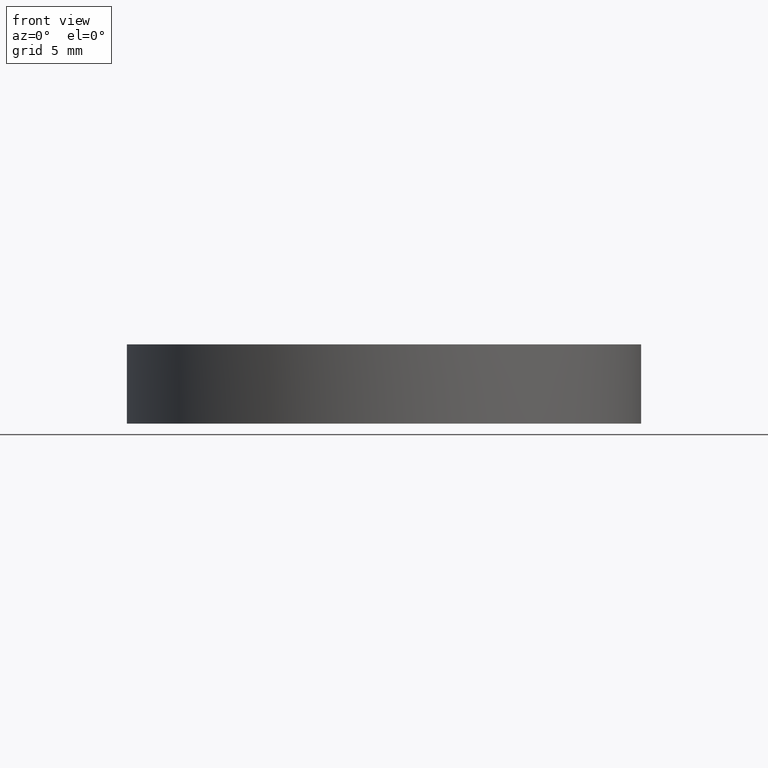
[diagram: clean part render]
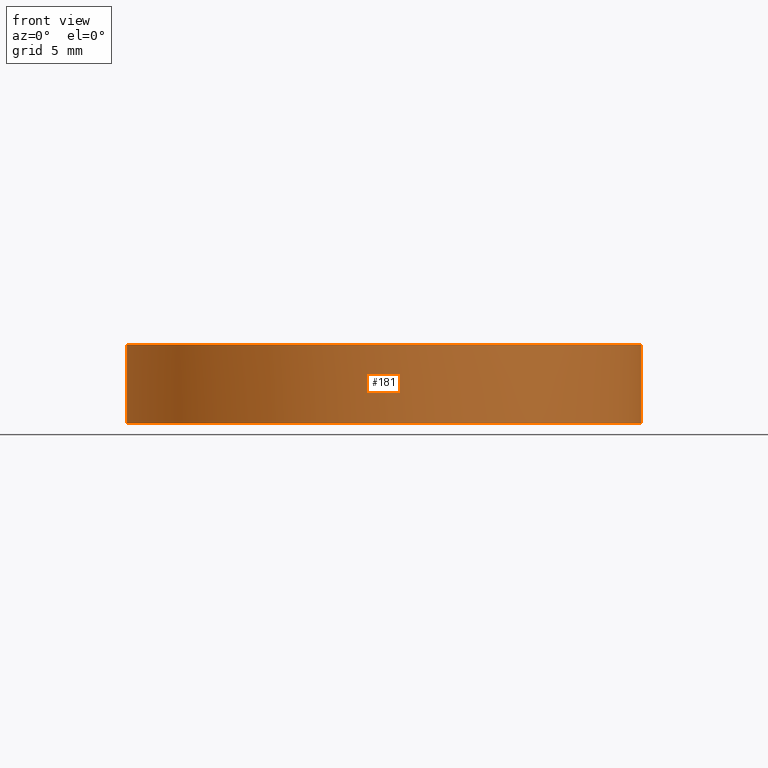
[diagram: same view with one face highlighted and labeled with its STEP entity id]
A machine part, front view. The second image highlights one B-rep face of the part: STEP entity #181.
In plain terms, the highlighted cylindrical surface (partial cylindrical patch) has radius 19.05 mm, axis along (-0, -0, 1).
Its self-contained STEP definition (entity closure, byte-faithful):
#1 = CIRCLE ( 'NONE', #19, 19.05000000000000100 ) ;
#5 = CARTESIAN_POINT ( 'NONE',  ( -4.731295993454753300E-015, -8.881784197001250400E-016, 4.099999999999999600 ) ) ;
#14 = LINE ( 'NONE', #165, #104 ) ;
#19 = AXIS2_PLACEMENT_3D ( 'NONE', #5, #186, #156 ) ;
#23 = CARTESIAN_POINT ( 'NONE',  ( 2.176337884454689400E-014, -19.04999999999996900, -1.764787732599487400 ) ) ;
#24 = CYLINDRICAL_SURFACE ( 'NONE', #194, 19.05000000000000100 ) ;
#27 = CARTESIAN_POINT ( 'NONE',  ( -4.662936703425659800E-015, -8.881784197001250400E-016, -1.764787732599490300 ) ) ;
#44 = FACE_OUTER_BOUND ( 'NONE', #132, .T. ) ;
#49 = DIRECTION ( 'NONE',  ( 1.000000000000000000, 0.0000000000000000000, 1.138269997360109700E-017 ) ) ;
#50 = VERTEX_POINT ( 'NONE', #23 ) ;
#62 = EDGE_CURVE ( 'NONE', #195, #77, #90, .T. ) ;
#73 = EDGE_CURVE ( 'NONE', #197, #233, #14, .T. ) ;
#75 = DIRECTION ( 'NONE',  ( -1.165588477296749900E-017, -5.434385993627839900E-034, 1.000000000000000000 ) ) ;
#77 = VERTEX_POINT ( 'NONE', #112 ) ;
#78 = AXIS2_PLACEMENT_3D ( 'NONE', #138, #80, #49 ) ;
#80 = DIRECTION ( 'NONE',  ( -1.165588477296749900E-017, -5.434385993627839900E-034, 1.000000000000000000 ) ) ;
#86 = CIRCLE ( 'NONE', #129, 19.05000000000000100 ) ;
#90 = LINE ( 'NONE', #220, #152 ) ;
#95 = EDGE_CURVE ( 'NONE', #50, #197, #86, .T. ) ;
#100 = ORIENTED_EDGE ( 'NONE', *, *, #73, .T. ) ;
#104 = VECTOR ( 'NONE', #75, 1000.000000000000000 ) ;
#112 = CARTESIAN_POINT ( 'NONE',  ( -19.05000000000000400, 1.444773732675583000E-015, 4.099999999999999600 ) ) ;
#113 = DIRECTION ( 'NONE',  ( -1.165588477296749900E-017, -5.434385993627839900E-034, 1.000000000000000000 ) ) ;
#122 = DIRECTION ( 'NONE',  ( -1.165588477296749900E-017, -5.434385993627839900E-034, 1.000000000000000000 ) ) ;
#129 = AXIS2_PLACEMENT_3D ( 'NONE', #27, #185, #155 ) ;
#132 = EDGE_LOOP ( 'NONE', ( #158, #145, #178, #100, #150 ) ) ;
#138 = CARTESIAN_POINT ( 'NONE',  ( -4.662936703425659800E-015, -8.881784197001250400E-016, -1.764787732599490300 ) ) ;
#145 = ORIENTED_EDGE ( 'NONE', *, *, #212, .T. ) ;
#150 = ORIENTED_EDGE ( 'NONE', *, *, #157, .T. ) ;
#152 = VECTOR ( 'NONE', #113, 1000.000000000000000 ) ;
#153 = CARTESIAN_POINT ( 'NONE',  ( 19.04999999999999700, -8.881784197001250400E-016, 4.099999999999999600 ) ) ;
#155 = DIRECTION ( 'NONE',  ( 1.000000000000000000, 0.0000000000000000000, 1.138269997360109700E-017 ) ) ;
#156 = DIRECTION ( 'NONE',  ( 1.000000000000000000, 0.0000000000000000000, 0.0000000000000000000 ) ) ;
#157 = EDGE_CURVE ( 'NONE', #233, #77, #1, .T. ) ;
#158 = ORIENTED_EDGE ( 'NONE', *, *, #62, .F. ) ;
#165 = CARTESIAN_POINT ( 'NONE',  ( 19.04999999999999700, -8.881784197001250400E-016, -1.764787732599489800 ) ) ;
#167 = DIRECTION ( 'NONE',  ( 1.000000000000000000, 0.0000000000000000000, 1.138269997360109700E-017 ) ) ;
#171 = CIRCLE ( 'NONE', #78, 19.05000000000000100 ) ;
#178 = ORIENTED_EDGE ( 'NONE', *, *, #95, .T. ) ;
#181 = ADVANCED_FACE ( 'NONE', ( #44 ), #24, .T. ) ;
#185 = DIRECTION ( 'NONE',  ( -1.165588477296749900E-017, -5.434385993627839900E-034, 1.000000000000000000 ) ) ;
#186 = DIRECTION ( 'NONE',  ( 1.165588477296749900E-017, 5.434385993627839900E-034, -1.000000000000000000 ) ) ;
#187 = CARTESIAN_POINT ( 'NONE',  ( 19.04999999999999700, -8.881784197001250400E-016, -1.764787732599490100 ) ) ;
#194 = AXIS2_PLACEMENT_3D ( 'NONE', #224, #122, #167 ) ;
#195 = VERTEX_POINT ( 'NONE', #227 ) ;
#197 = VERTEX_POINT ( 'NONE', #187 ) ;
#212 = EDGE_CURVE ( 'NONE', #195, #50, #171, .T. ) ;
#220 = CARTESIAN_POINT ( 'NONE',  ( -19.05000000000000400, 1.444773732675583000E-015, -1.764787732599490300 ) ) ;
#224 = CARTESIAN_POINT ( 'NONE',  ( -4.662936703425659800E-015, -8.881784197001250400E-016, -1.764787732599490100 ) ) ;
#227 = CARTESIAN_POINT ( 'NONE',  ( -19.05000000000000400, 1.444773732675583000E-015, -1.764787732599490500 ) ) ;
#233 = VERTEX_POINT ( 'NONE', #153 ) ;